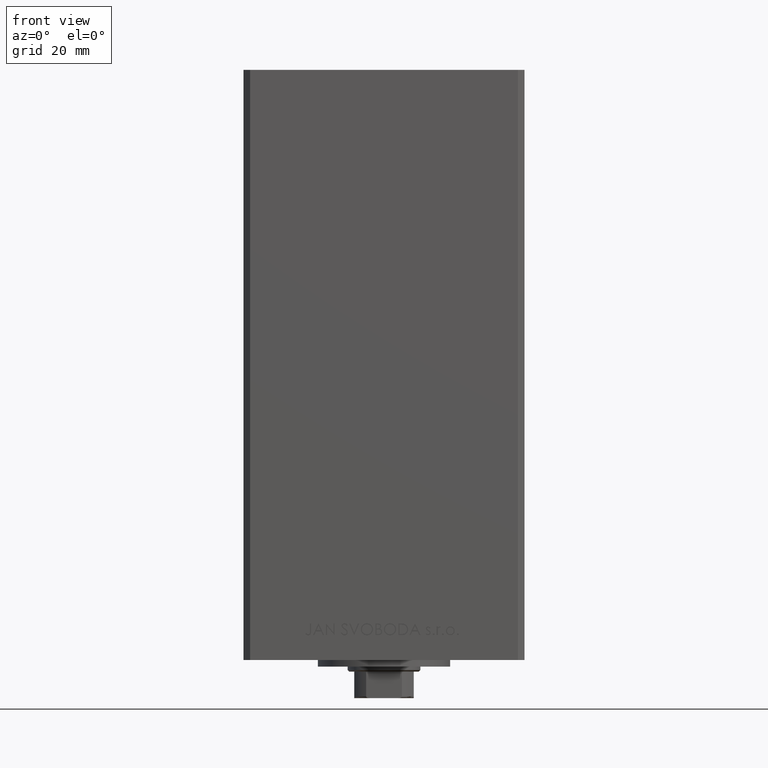
[diagram: clean part render]
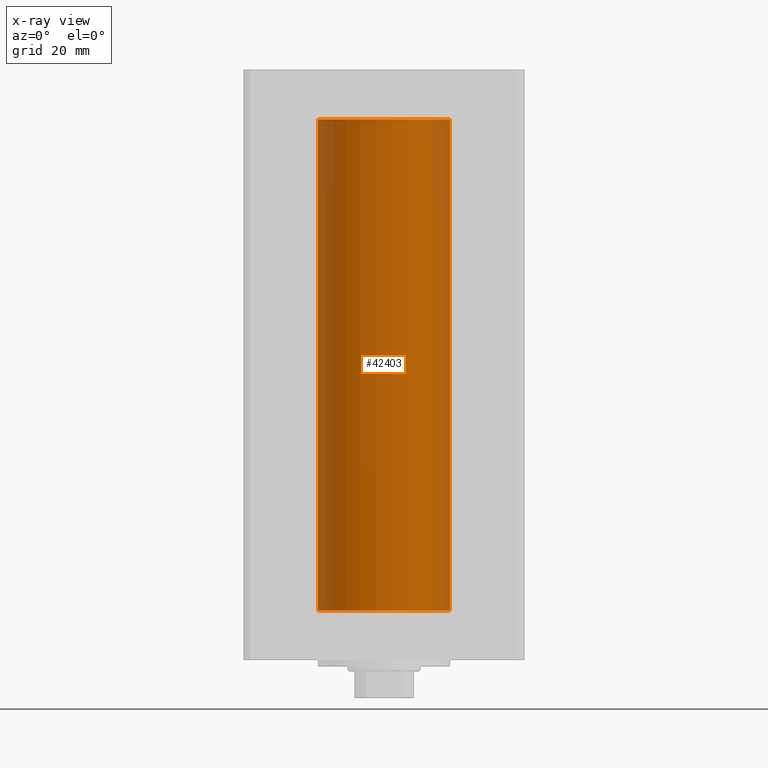
[diagram: x-ray — body ghosted, one internal face saturated and labeled with its STEP entity id]
A machine part, front view, then the same camera in x-ray: the body is ghosted and one INTERNAL B-rep face — a face not visible from any outside direction — is saturated and labeled: STEP entity #42403.
In plain terms, the highlighted cylindrical surface (partial cylindrical patch) has radius 20 mm, axis along (-0, -0, -1).
Its self-contained STEP definition (entity closure, byte-faithful):
#1887 = DIRECTION ( 'NONE',  ( -0.000000000000000000, -0.000000000000000000, -1.000000000000000000 ) ) ;
#1922 = CIRCLE ( 'NONE', #13777, 20.00000000000000000 ) ;
#2015 = CARTESIAN_POINT ( 'NONE',  ( 0.000000000000000000, 0.000000000000000000, 0.000000000000000000 ) ) ;
#4330 = DIRECTION ( 'NONE',  ( 1.000000000000000000, 0.000000000000000000, 0.000000000000000000 ) ) ;
#4877 = CYLINDRICAL_SURFACE ( 'NONE', #34446, 20.00000000000000000 ) ;
#5602 = LINE ( 'NONE', #20691, #11519 ) ;
#7797 = DIRECTION ( 'NONE',  ( -0.000000000000000000, 0.000000000000000000, 1.000000000000000000 ) ) ;
#11519 = VECTOR ( 'NONE', #1887, 1000.000000000000000 ) ;
#12100 = CARTESIAN_POINT ( 'NONE',  ( 20.00000000000000000, 2.449293598294706513E-15, 148.5000000000000000 ) ) ;
#13777 = AXIS2_PLACEMENT_3D ( 'NONE', #18934, #7797, #4330 ) ;
#14742 = ORIENTED_EDGE ( 'NONE', *, *, #43921, .F. ) ;
#14880 = CARTESIAN_POINT ( 'NONE',  ( -20.00000000000000000, 0.000000000000000000, 148.5000000000000000 ) ) ;
#16654 = DIRECTION ( 'NONE',  ( -0.000000000000000000, -0.000000000000000000, -1.000000000000000000 ) ) ;
#17379 = LINE ( 'NONE', #39654, #21076 ) ;
#18934 = CARTESIAN_POINT ( 'NONE',  ( 0.000000000000000000, 0.000000000000000000, 148.5000000000000000 ) ) ;
#20691 = CARTESIAN_POINT ( 'NONE',  ( 20.00000000000000000, 2.449293598294706513E-15, 148.5000000000000000 ) ) ;
#21076 = VECTOR ( 'NONE', #16654, 1000.000000000000000 ) ;
#22271 = DIRECTION ( 'NONE',  ( -0.000000000000000000, -0.000000000000000000, -1.000000000000000000 ) ) ;
#24101 = EDGE_CURVE ( 'NONE', #28329, #32802, #1922, .T. ) ;
#28022 = ORIENTED_EDGE ( 'NONE', *, *, #29080, .T. ) ;
#28329 = VERTEX_POINT ( 'NONE', #14880 ) ;
#29080 = EDGE_CURVE ( 'NONE', #32802, #40419, #5602, .T. ) ;
#29647 = AXIS2_PLACEMENT_3D ( 'NONE', #2015, #46823, #38895 ) ;
#30181 = FACE_OUTER_BOUND ( 'NONE', #39902, .T. ) ;
#32242 = CARTESIAN_POINT ( 'NONE',  ( 20.00000000000000000, 2.449293598294706513E-15, 0.000000000000000000 ) ) ;
#32802 = VERTEX_POINT ( 'NONE', #12100 ) ;
#34446 = AXIS2_PLACEMENT_3D ( 'NONE', #45284, #22271, #42746 ) ;
#36267 = ORIENTED_EDGE ( 'NONE', *, *, #36826, .F. ) ;
#36826 = EDGE_CURVE ( 'NONE', #47709, #40419, #45432, .T. ) ;
#38895 = DIRECTION ( 'NONE',  ( 1.000000000000000000, 0.000000000000000000, 0.000000000000000000 ) ) ;
#39654 = CARTESIAN_POINT ( 'NONE',  ( -20.00000000000000000, 0.000000000000000000, 148.5000000000000000 ) ) ;
#39902 = EDGE_LOOP ( 'NONE', ( #46875, #28022, #36267, #14742 ) ) ;
#40419 = VERTEX_POINT ( 'NONE', #32242 ) ;
#42403 = ADVANCED_FACE ( 'NONE', ( #30181 ), #4877, .F. ) ;
#42746 = DIRECTION ( 'NONE',  ( -1.000000000000000000, 0.000000000000000000, 0.000000000000000000 ) ) ;
#43921 = EDGE_CURVE ( 'NONE', #28329, #47709, #17379, .T. ) ;
#45284 = CARTESIAN_POINT ( 'NONE',  ( 0.000000000000000000, 0.000000000000000000, 148.5000000000000000 ) ) ;
#45432 = CIRCLE ( 'NONE', #29647, 20.00000000000000000 ) ;
#45454 = CARTESIAN_POINT ( 'NONE',  ( -20.00000000000000000, 0.000000000000000000, 0.000000000000000000 ) ) ;
#46823 = DIRECTION ( 'NONE',  ( -0.000000000000000000, 0.000000000000000000, 1.000000000000000000 ) ) ;
#46875 = ORIENTED_EDGE ( 'NONE', *, *, #24101, .T. ) ;
#47709 = VERTEX_POINT ( 'NONE', #45454 ) ;